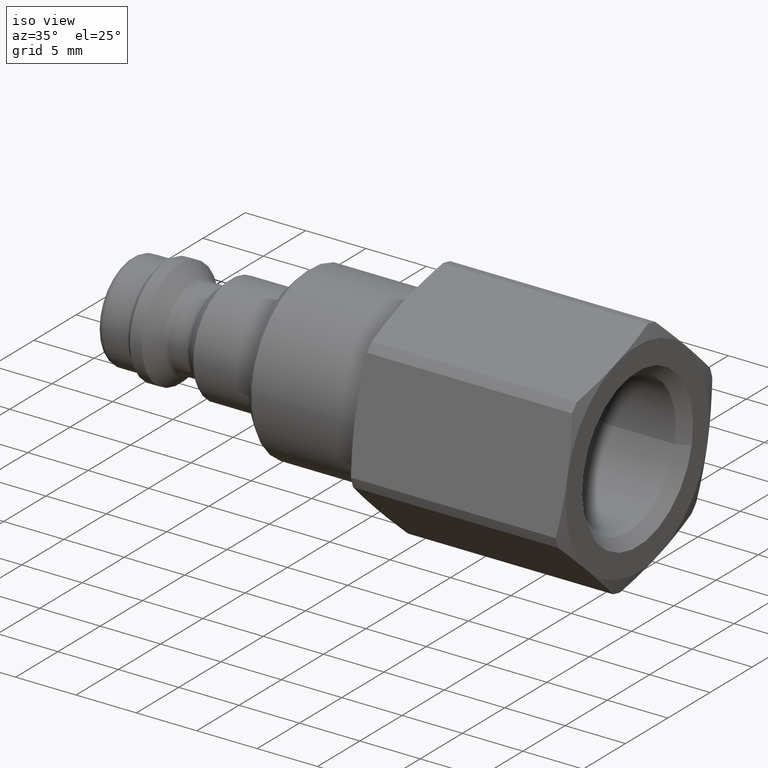
[diagram: clean part render]
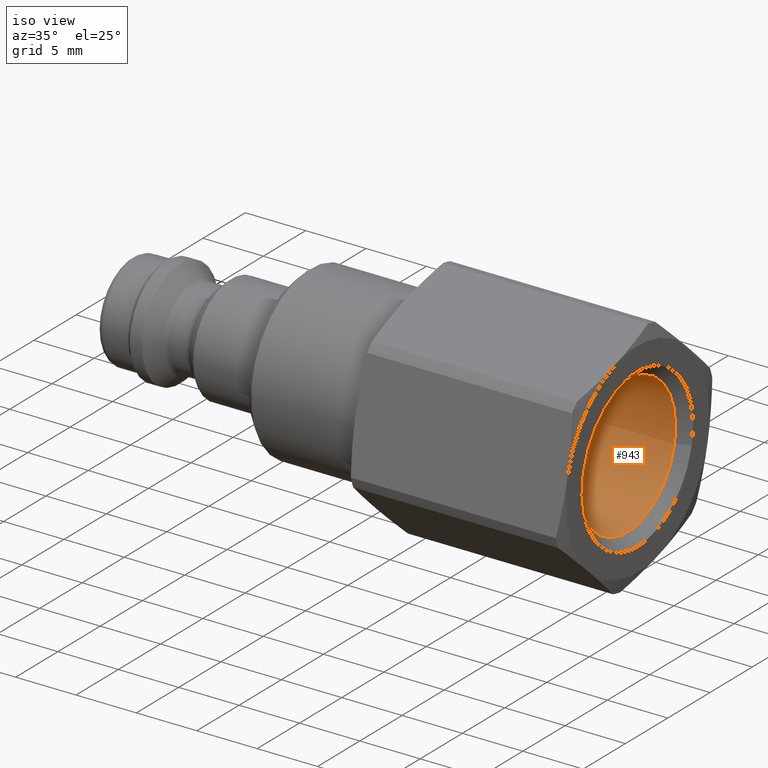
[diagram: same view with one face highlighted and labeled with its STEP entity id]
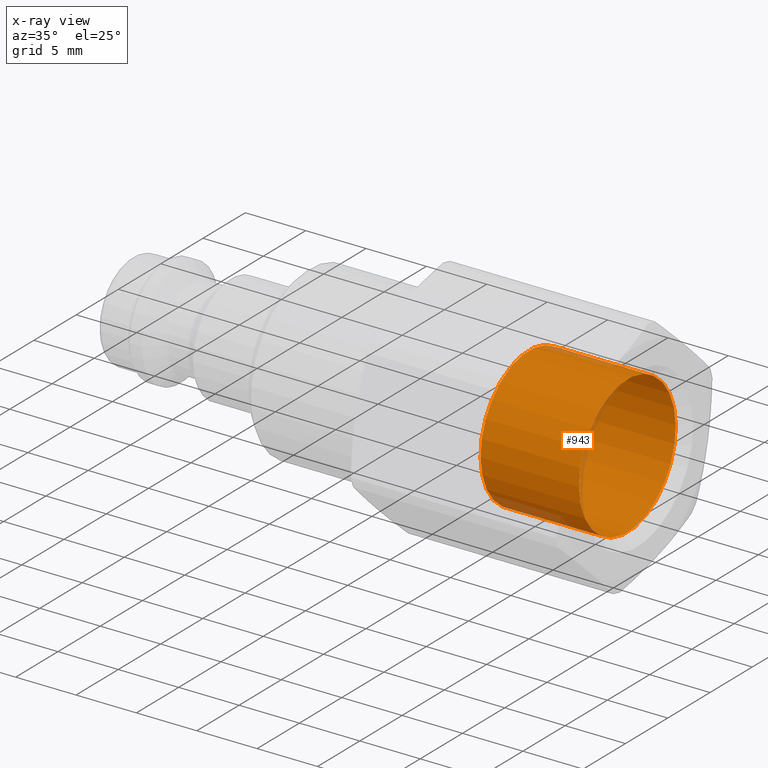
[diagram: x-ray of the same camera — body ghosted, the highlighted face saturated]
A machine part, iso view. The second image highlights one B-rep face of the part: STEP entity #943.
The next image is the same camera in x-ray: the body ghosted, the highlighted face saturated — about 5% of this face is hidden behind the body in this view.
In plain terms, the highlighted cylindrical surface (bore or boss wall) has radius 5.7225 mm, axis along (-1, -0, 0).
Its self-contained STEP definition (entity closure, byte-faithful):
#901=CARTESIAN_POINT('',(41.150000000000013,5.587133599395495,-1.237313376839492));
#902=VERTEX_POINT('',#901);
#903=CARTESIAN_POINT('',(41.150000000000013,-1.382786E-034,0.0));
#904=DIRECTION('',(-1.0,-1.550753E-034,3.434260E-035));
#905=DIRECTION('',(1.588325E-034,-0.976344884123284,0.216219026096897));
#906=AXIS2_PLACEMENT_3D('',#903,#904,#905);
#907=CIRCLE('',#906,5.7225);
#908=EDGE_CURVE('',#902,#902,#907,.T.);
#924=CARTESIAN_POINT('',(37.500000000000014,-7.320632E-034,0.0));
#925=DIRECTION('',(-1.0,-1.626807E-034,0.0));
#926=DIRECTION('',(-1.588325E-034,0.976344884123284,-0.216219026096897));
#927=AXIS2_PLACEMENT_3D('',#924,#925,#926);
#928=CYLINDRICAL_SURFACE('',#927,5.7225);
#929=CARTESIAN_POINT('',(33.000000000000014,5.587133599395495,-1.237313376839491));
#930=VERTEX_POINT('',#929);
#931=CARTESIAN_POINT('',(33.000000000000014,-1.464126E-033,5.345529E-050));
#932=DIRECTION('',(-1.0,-1.550753E-034,3.434260E-035));
#933=DIRECTION('',(-1.588325E-034,0.976344884123284,-0.216219026096897));
#934=AXIS2_PLACEMENT_3D('',#931,#932,#933);
#935=CIRCLE('',#934,5.7225);
#936=EDGE_CURVE('',#930,#930,#935,.T.);
#937=ORIENTED_EDGE('',*,*,#936,.T.);
#938=EDGE_LOOP('',(#937));
#939=FACE_OUTER_BOUND('',#938,.T.);
#940=ORIENTED_EDGE('',*,*,#908,.F.);
#941=EDGE_LOOP('',(#940));
#942=FACE_BOUND('',#941,.T.);
#943=ADVANCED_FACE('',(#939,#942),#928,.F.);